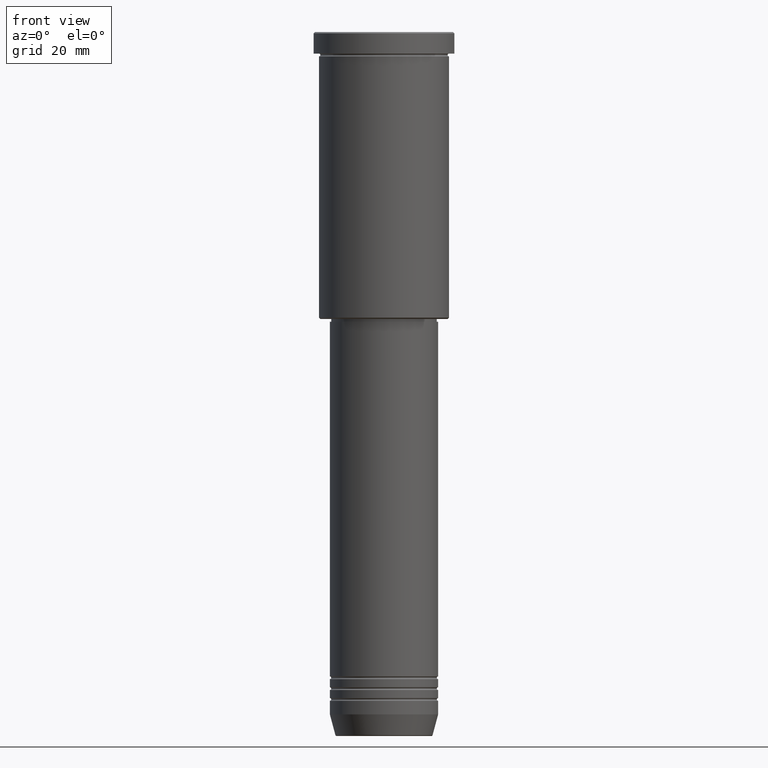
[diagram: clean part render]
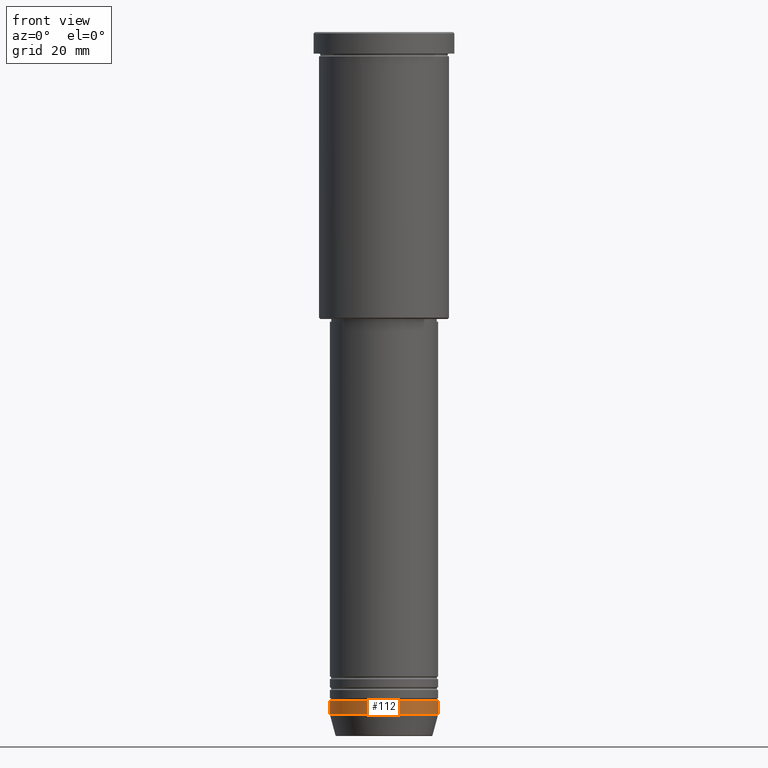
[diagram: same view with one face highlighted and labeled with its STEP entity id]
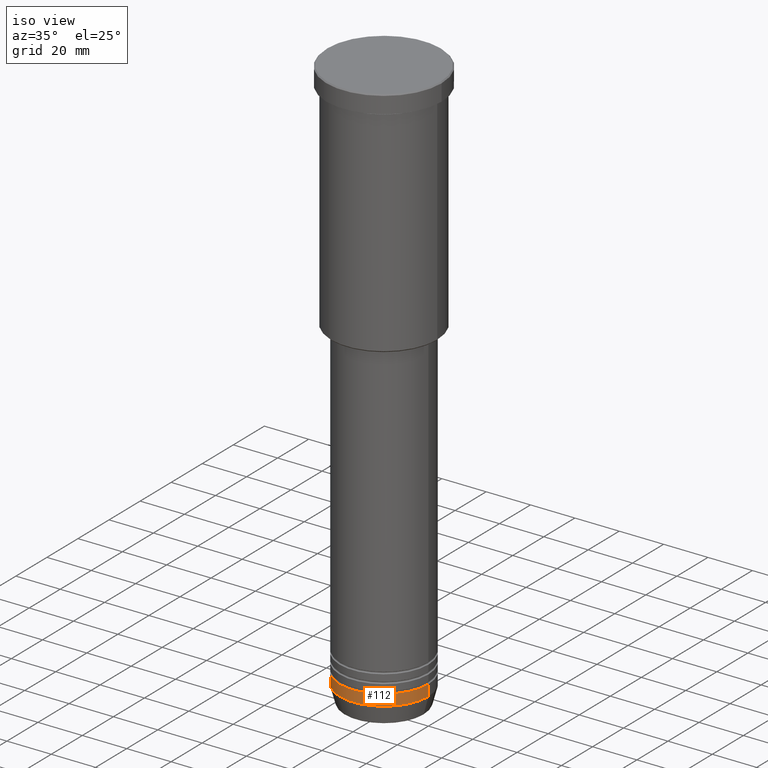
[diagram: same view with one face highlighted and labeled with its STEP entity id]
A machine part, front view. The second image highlights one B-rep face of the part: STEP entity #112.
A second angle (iso view) of the same face is appended — the face is thin or edge-on in the first view.
In plain terms, the highlighted cylindrical surface (partial cylindrical patch) has radius 20 mm, axis along (-0, -0, 1).
Its self-contained STEP definition (entity closure, byte-faithful):
#58 = LINE ( 'NONE', #1154, #599 ) ;
#73 = CARTESIAN_POINT ( 'NONE',  ( 20.00000000000000000, 0.000000000000000000, -247.0000000000000000 ) ) ;
#94 = DIRECTION ( 'NONE',  ( 1.000000000000000000, 0.000000000000000000, 0.000000000000000000 ) ) ;
#104 = LINE ( 'NONE', #943, #946 ) ;
#111 = ORIENTED_EDGE ( 'NONE', *, *, #450, .F. ) ;
#112 = ADVANCED_FACE ( 'NONE', ( #214 ), #1101, .T. ) ;
#114 = CARTESIAN_POINT ( 'NONE',  ( 0.000000000000000000, 0.000000000000000000, 0.000000000000000000 ) ) ;
#163 = CARTESIAN_POINT ( 'NONE',  ( -20.00000000000000000, 2.449293598294706513E-15, -247.0000000000000000 ) ) ;
#166 = DIRECTION ( 'NONE',  ( 1.000000000000000000, 0.000000000000000000, 0.000000000000000000 ) ) ;
#214 = FACE_OUTER_BOUND ( 'NONE', #761, .T. ) ;
#231 = VERTEX_POINT ( 'NONE', #73 ) ;
#246 = DIRECTION ( 'NONE',  ( -0.000000000000000000, -0.000000000000000000, 1.000000000000000000 ) ) ;
#260 = AXIS2_PLACEMENT_3D ( 'NONE', #360, #1095, #166 ) ;
#282 = DIRECTION ( 'NONE',  ( -0.000000000000000000, -0.000000000000000000, 1.000000000000000000 ) ) ;
#335 = CIRCLE ( 'NONE', #260, 20.00000000000000000 ) ;
#360 = CARTESIAN_POINT ( 'NONE',  ( 0.000000000000000000, 0.000000000000000000, -247.0000000000000000 ) ) ;
#413 = ORIENTED_EDGE ( 'NONE', *, *, #949, .T. ) ;
#450 = EDGE_CURVE ( 'NONE', #667, #633, #104, .T. ) ;
#472 = ORIENTED_EDGE ( 'NONE', *, *, #840, .T. ) ;
#541 = DIRECTION ( 'NONE',  ( -0.000000000000000000, -0.000000000000000000, 1.000000000000000000 ) ) ;
#599 = VECTOR ( 'NONE', #246, 1000.000000000000000 ) ;
#622 = CARTESIAN_POINT ( 'NONE',  ( 0.000000000000000000, 0.000000000000000000, -252.0000000000000000 ) ) ;
#633 = VERTEX_POINT ( 'NONE', #163 ) ;
#654 = DIRECTION ( 'NONE',  ( -0.000000000000000000, -0.000000000000000000, 1.000000000000000000 ) ) ;
#667 = VERTEX_POINT ( 'NONE', #898 ) ;
#736 = DIRECTION ( 'NONE',  ( 1.000000000000000000, 0.000000000000000000, 0.000000000000000000 ) ) ;
#761 = EDGE_LOOP ( 'NONE', ( #111, #413, #472, #843 ) ) ;
#776 = AXIS2_PLACEMENT_3D ( 'NONE', #622, #541, #736 ) ;
#840 = EDGE_CURVE ( 'NONE', #872, #231, #58, .T. ) ;
#843 = ORIENTED_EDGE ( 'NONE', *, *, #969, .F. ) ;
#869 = CIRCLE ( 'NONE', #776, 20.00000000000000355 ) ;
#872 = VERTEX_POINT ( 'NONE', #1176 ) ;
#898 = CARTESIAN_POINT ( 'NONE',  ( -20.00000000000000355, 2.449293598294706907E-15, -252.0000000000000000 ) ) ;
#943 = CARTESIAN_POINT ( 'NONE',  ( -20.00000000000000355, 2.449293598294706907E-15, 0.000000000000000000 ) ) ;
#946 = VECTOR ( 'NONE', #282, 1000.000000000000000 ) ;
#949 = EDGE_CURVE ( 'NONE', #667, #872, #869, .T. ) ;
#969 = EDGE_CURVE ( 'NONE', #633, #231, #335, .T. ) ;
#1036 = AXIS2_PLACEMENT_3D ( 'NONE', #114, #654, #94 ) ;
#1095 = DIRECTION ( 'NONE',  ( -0.000000000000000000, -0.000000000000000000, 1.000000000000000000 ) ) ;
#1101 = CYLINDRICAL_SURFACE ( 'NONE', #1036, 20.00000000000000355 ) ;
#1154 = CARTESIAN_POINT ( 'NONE',  ( 20.00000000000000355, 0.000000000000000000, 0.000000000000000000 ) ) ;
#1176 = CARTESIAN_POINT ( 'NONE',  ( 20.00000000000000355, 0.000000000000000000, -252.0000000000000000 ) ) ;